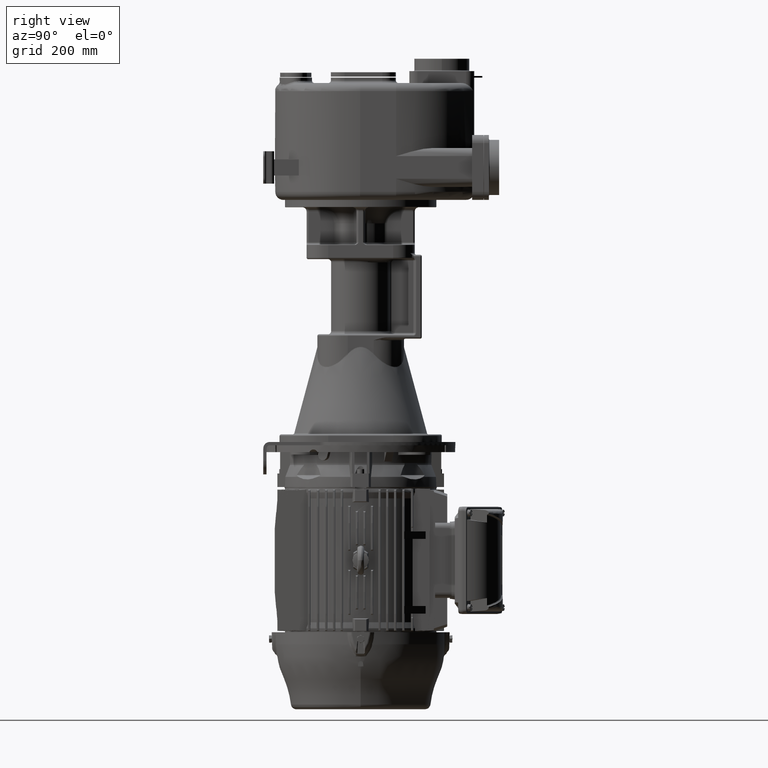
[diagram: clean part render]
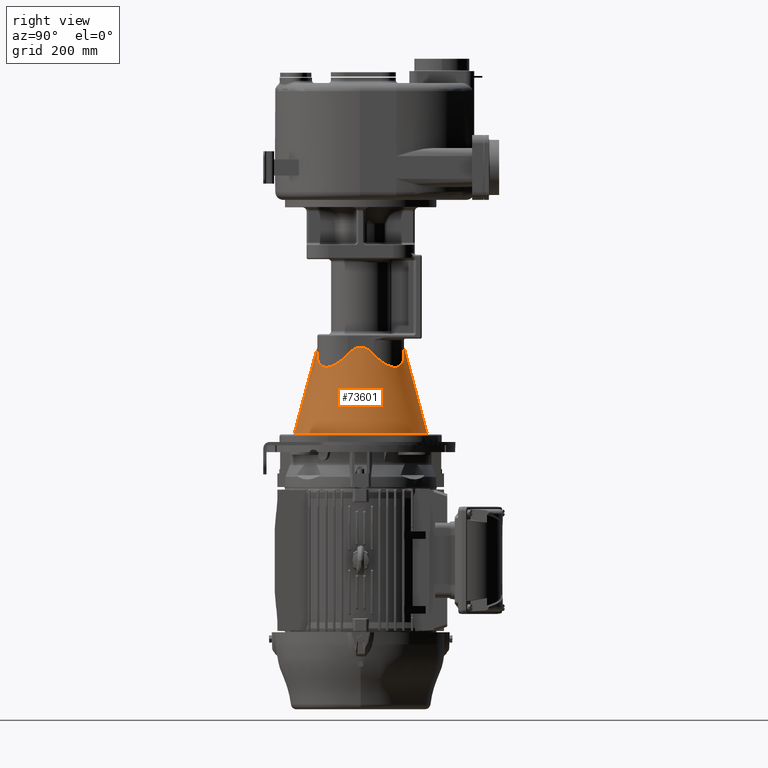
[diagram: same view with one face highlighted and labeled with its STEP entity id]
A machine part, right view. The second image highlights one B-rep face of the part: STEP entity #73601.
In plain terms, the highlighted conical surface has half-angle 15 deg.
Its self-contained STEP definition (entity closure, byte-faithful):
#20757=CARTESIAN_POINT('',(-2.324727645955E-13,1.58E2,-4.912764571353E2));
#20758=DIRECTION('',(0.E0,0.E0,1.E0));
#20759=DIRECTION('',(2.376209689192E-1,-9.713579541703E-1,0.E0));
#20760=AXIS2_PLACEMENT_3D('',#20757,#20758,#20759);
#20798=CARTESIAN_POINT('',(-2.513692998840E-13,2.381022225205E2,
-3.323500949365E2));
#21101=DIRECTION('',(0.E0,2.588190451061E-1,9.659258262881E-1));
#21102=VECTOR('',#21101,1.645326772238E2);
#21103=CARTESIAN_POINT('',(8.969810810603E-14,3.531358707165E1,
-4.912764571353E2));
#21104=LINE('',#21103,#21102);
#21105=CARTESIAN_POINT('',(2.319506396796E1,7.778373711082E1,
-3.450399315817E2));
#21106=CARTESIAN_POINT('',(2.288359843524E1,7.778661370874E1,
-3.447067289652E2));
#21107=CARTESIAN_POINT('',(2.226863818762E1,7.779220502480E1,
-3.440611301452E2));
#21108=CARTESIAN_POINT('',(2.137324140061E1,7.780009239633E1,
-3.431557259198E2));
#21109=CARTESIAN_POINT('',(2.050004827564E1,7.780753607654E1,
-3.423058945816E2));
#21110=CARTESIAN_POINT('',(1.964856931574E1,7.781455187850E1,
-3.415090249328E2));
#21111=CARTESIAN_POINT('',(1.881811140832E1,7.782115765770E1,
-3.407623363367E2));
#21112=CARTESIAN_POINT('',(1.800717068039E1,7.782737707550E1,
-3.400625046679E2));
#21113=CARTESIAN_POINT('',(1.721497222699E1,7.783322727207E1,
-3.394070239507E2));
#21114=CARTESIAN_POINT('',(1.644044440834E1,7.783872706077E1,
-3.387932733923E2));
#21115=CARTESIAN_POINT('',(1.568268036623E1,7.784389316103E1,
-3.382189200329E2));
#21116=CARTESIAN_POINT('',(1.494077587743E1,7.784874167591E1,
-3.376817647559E2));
#21117=CARTESIAN_POINT('',(1.421386435069E1,7.785328777749E1,
-3.371797665888E2));
#21118=CARTESIAN_POINT('',(1.350111279409E1,7.785754575579E1,
-3.367110299790E2));
#21119=CARTESIAN_POINT('',(1.280171576462E1,7.786152905448E1,
-3.362737936328E2));
#21120=CARTESIAN_POINT('',(1.211489612810E1,7.786525027638E1,
-3.358664241492E2));
#21121=CARTESIAN_POINT('',(1.143990248717E1,7.786872119480E1,
-3.354874079932E2));
#21122=CARTESIAN_POINT('',(1.077600792650E1,7.787195280823E1,
-3.351353446267E2));
#21123=CARTESIAN_POINT('',(1.012250753637E1,7.787495539918E1,
-3.348089394529E2));
#21124=CARTESIAN_POINT('',(9.478717047024E0,7.787773853977E1,
-3.345069980714E2));
#21125=CARTESIAN_POINT('',(8.843971320546E0,7.788031110969E1,
-3.342284208210E2));
#21126=CARTESIAN_POINT('',(8.217622980467E0,7.788268131483E1,
-3.339721977943E2));
#21127=CARTESIAN_POINT('',(7.599041007347E0,7.788485669848E1,
-3.337374042576E2));
#21128=CARTESIAN_POINT('',(6.987610053470E0,7.788684419868E1,
-3.335231965037E2));
#21129=CARTESIAN_POINT('',(6.382728527642E0,7.788865017662E1,
-3.333288077016E2));
#21130=CARTESIAN_POINT('',(5.783807710791E0,7.789028041059E1,
-3.331535446081E2));
#21131=CARTESIAN_POINT('',(5.190269569589E0,7.789174011402E1,
-3.329967841122E2));
#21132=CARTESIAN_POINT('',(4.601547002469E0,7.789303394111E1,
-3.328579709856E2));
#21133=CARTESIAN_POINT('',(4.017084441946E0,7.789416600345E1,
-3.327366151512E2));
#21134=CARTESIAN_POINT('',(3.436319602495E0,7.789513989709E1,
-3.326322874809E2));
#21135=CARTESIAN_POINT('',(2.858749675760E0,7.789595869338E1,
-3.325446265706E2));
#21136=CARTESIAN_POINT('',(2.283741555901E0,7.789662515704E1,
-3.324733127190E2));
#21137=CARTESIAN_POINT('',(1.710935328613E0,7.789714119506E1,
-3.324181163803E2));
#21138=CARTESIAN_POINT('',(1.139637366504E0,7.789750873703E1,
-3.323788219683E2));
#21139=CARTESIAN_POINT('',(5.691455433608E-1,7.789772876202E1,
-3.323553004476E2));
#21140=CARTESIAN_POINT('',(1.896066888696E-1,7.789777746899E1,
-3.323500950132E2));
#21141=CARTESIAN_POINT('',(2.155903314876E-13,7.789777747946E1,
-3.323500949365E2));
#21143=CARTESIAN_POINT('',(8.021626288916E1,1.348049360320E2,
-3.450399315817E2));
#21144=CARTESIAN_POINT('',(8.022007583366E1,1.343920820538E2,
-3.454815983195E2));
#21145=CARTESIAN_POINT('',(8.021860118358E1,1.335713561967E2,
-3.463481293245E2));
#21146=CARTESIAN_POINT('',(8.019013601445E1,1.323569917910E2,
-3.475973797957E2));
#21147=CARTESIAN_POINT('',(8.013644375145E1,1.311590206354E2,
-3.487981059423E2));
#21148=CARTESIAN_POINT('',(8.005852826009E1,1.299779153036E2,
-3.499514131168E2));
#21149=CARTESIAN_POINT('',(7.995738203444E1,1.288139593925E2,
-3.510585546237E2));
#21150=CARTESIAN_POINT('',(7.983395245576E1,1.276672081526E2,
-3.521209356111E2));
#21151=CARTESIAN_POINT('',(7.968916954858E1,1.265378098182E2,
-3.531398092186E2));
#21152=CARTESIAN_POINT('',(7.952392668494E1,1.254258013408E2,
-3.541164715815E2));
#21153=CARTESIAN_POINT('',(7.933908760887E1,1.243312028670E2,
-3.550521727107E2));
#21154=CARTESIAN_POINT('',(7.913548336963E1,1.232539926920E2,
-3.559481417145E2));
#21155=CARTESIAN_POINT('',(7.891391194714E1,1.221941154165E2,
-3.568055798083E2));
#21156=CARTESIAN_POINT('',(7.867513804119E1,1.211514849533E2,
-3.576256588856E2));
#21157=CARTESIAN_POINT('',(7.841989245632E1,1.201259858542E2,
-3.584095212799E2));
#21158=CARTESIAN_POINT('',(7.814887208069E1,1.191174765600E2,
-3.591582781104E2));
#21159=CARTESIAN_POINT('',(7.786273983987E1,1.181257918931E2,
-3.598730081957E2));
#21160=CARTESIAN_POINT('',(7.756212477342E1,1.171507451512E2,
-3.605547576539E2));
#21161=CARTESIAN_POINT('',(7.724762220146E1,1.161921302838E2,
-3.612045393188E2));
#21162=CARTESIAN_POINT('',(7.691979397758E1,1.152497240137E2,
-3.618233321848E2));
#21163=CARTESIAN_POINT('',(7.657916883215E1,1.143232878749E2,
-3.624120809636E2));
#21164=CARTESIAN_POINT('',(7.622624278927E1,1.134125701563E2,
-3.629716957382E2));
#21165=CARTESIAN_POINT('',(7.586147970929E1,1.125173079079E2,
-3.635030516029E2));
#21166=CARTESIAN_POINT('',(7.548531192713E1,1.116372288387E2,
-3.640069884960E2));
#21167=CARTESIAN_POINT('',(7.509814073538E1,1.107720526622E2,
-3.644843113467E2));
#21168=CARTESIAN_POINT('',(7.470033703046E1,1.099214927347E2,
-3.649357899876E2));
#21169=CARTESIAN_POINT('',(7.429224196353E1,1.090852575256E2,
-3.653621591879E2));
#21170=CARTESIAN_POINT('',(7.387416763672E1,1.082630520444E2,
-3.657641187192E2));
#21171=CARTESIAN_POINT('',(7.344639779184E1,1.074545791527E2,
-3.661423334560E2));
#21172=CARTESIAN_POINT('',(7.300918875674E1,1.066595411478E2,
-3.664974335082E2));
#21173=CARTESIAN_POINT('',(7.256277002854E1,1.058776406176E2,
-3.668300145918E2));
#21174=CARTESIAN_POINT('',(7.210734499484E1,1.051085815588E2,
-3.671406381824E2));
#21175=CARTESIAN_POINT('',(7.164309166646E1,1.043520704148E2,
-3.674298317485E2));
#21176=CARTESIAN_POINT('',(7.117016343012E1,1.036078170866E2,
-3.676980889941E2));
#21177=CARTESIAN_POINT('',(7.068868977129E1,1.028755358547E2,
-3.679458701021E2));
#21178=CARTESIAN_POINT('',(7.019877694194E1,1.021549461660E2,
-3.681736020528E2));
#21179=CARTESIAN_POINT('',(6.970050908822E1,1.014457739536E2,
-3.683816789439E2));
#21180=CARTESIAN_POINT('',(6.919394846979E1,1.007477517973E2,
-3.685704622509E2));
#21181=CARTESIAN_POINT('',(6.867913635031E1,1.000606199527E2,
-3.687402810254E2));
#21182=CARTESIAN_POINT('',(6.815609356815E1,9.938412693078E1,
-3.688914321379E2));
#21183=CARTESIAN_POINT('',(6.762482117482E1,9.871803015420E1,
-3.690241805170E2));
#21184=CARTESIAN_POINT('',(6.708530126628E1,9.806209685983E1,
-3.691387592692E2));
#21185=CARTESIAN_POINT('',(6.653749756530E1,9.741610455726E1,
-3.692353701226E2));
#21186=CARTESIAN_POINT('',(6.598135605582E1,9.677984166622E1,
-3.693141835617E2));
#21187=CARTESIAN_POINT('',(6.541680547208E1,9.615310803480E1,
-3.693753388366E2));
#21188=CARTESIAN_POINT('',(6.484375783916E1,9.553571545899E1,
-3.694189441105E2));
#21189=CARTESIAN_POINT('',(6.426210909684E1,9.492748831757E1,
-3.694450765255E2));
#21190=CARTESIAN_POINT('',(6.367173979467E1,9.432826426090E1,
-3.694537822714E2));
#21191=CARTESIAN_POINT('',(6.307251563731E1,9.373789473972E1,
-3.694450766414E2));
#21192=CARTESIAN_POINT('',(6.246428820819E1,9.315624561197E1,
-3.694189443220E2));
#21193=CARTESIAN_POINT('',(6.184689508692E1,9.258319737605E1,
-3.693753391059E2));
#21194=CARTESIAN_POINT('',(6.122016082625E1,9.201864614922E1,
-3.693141838462E2));
#21195=CARTESIAN_POINT('',(6.058389736599E1,9.146250408619E1,
-3.692353703885E2));
#21196=CARTESIAN_POINT('',(5.993790450299E1,9.091469986739E1,
-3.691387594946E2));
#21197=CARTESIAN_POINT('',(5.928197071537E1,9.037517952529E1,
-3.690241806838E2));
#21198=CARTESIAN_POINT('',(5.861587339908E1,8.984390668603E1,
-3.688914322126E2));
#21199=CARTESIAN_POINT('',(5.793937977484E1,8.932086343713E1,
-3.687402809673E2));
#21200=CARTESIAN_POINT('',(5.725224738090E1,8.880605092037E1,
-3.685704620417E2));
#21201=CARTESIAN_POINT('',(5.655422474002E1,8.829948997602E1,
-3.683816785771E2));
#21202=CARTESIAN_POINT('',(5.584505204862E1,8.780122182034E1,
-3.681736015130E2));
#21203=CARTESIAN_POINT('',(5.512446189012E1,8.731130871725E1,
-3.679458693676E2));
#21204=CARTESIAN_POINT('',(5.439218011245E1,8.682983475562E1,
-3.676980880189E2));
#21205=CARTESIAN_POINT('',(5.364792629014E1,8.635690627270E1,
-3.674298305278E2));
#21206=CARTESIAN_POINT('',(5.289141469286E1,8.589265274272E1,
-3.671406367110E2));
#21207=CARTESIAN_POINT('',(5.212235518027E1,8.543722752476E1,
-3.668300128528E2));
#21208=CARTESIAN_POINT('',(5.134045418111E1,8.499080862250E1,
-3.664974314750E2));
#21209=CARTESIAN_POINT('',(5.054541571263E1,8.455359943554E1,
-3.661423311106E2));
#21210=CARTESIAN_POINT('',(4.973694240353E1,8.412582948090E1,
-3.657641160656E2));
#21211=CARTESIAN_POINT('',(4.891473657127E1,8.370775509363E1,
-3.653621562419E2));
#21212=CARTESIAN_POINT('',(4.807850103111E1,8.329965998896E1,
-3.649357867455E2));
#21213=CARTESIAN_POINT('',(4.722794080122E1,8.290185627228E1,
-3.644843078101E2));
#21214=CARTESIAN_POINT('',(4.636276437545E1,8.251468510357E1,
-3.640069846821E2));
#21215=CARTESIAN_POINT('',(4.548268511107E1,8.213851737616E1,
-3.635030475332E2));
#21216=CARTESIAN_POINT('',(4.458742271126E1,8.177375437551E1,
-3.629716914306E2));
#21217=CARTESIAN_POINT('',(4.367670488139E1,8.142082843279E1,
-3.624120764364E2));
#21218=CARTESIAN_POINT('',(4.275026869424E1,8.108020341402E1,
-3.618233274734E2));
#21219=CARTESIAN_POINT('',(4.180786240939E1,8.075237532963E1,
-3.612045344431E2));
#21220=CARTESIAN_POINT('',(4.084924755734E1,8.043787290743E1,
-3.605547526327E2));
#21221=CARTESIAN_POINT('',(3.987420090456E1,8.013725801228E1,
-3.598730030810E2));
#21222=CARTESIAN_POINT('',(3.888251641240E1,7.985112596311E1,
-3.591582729671E2));
#21223=CARTESIAN_POINT('',(3.787400731826E1,7.958010577832E1,
-3.584095161344E2));
#21224=CARTESIAN_POINT('',(3.684850842583E1,7.932486037902E1,
-3.576256537488E2));
#21225=CARTESIAN_POINT('',(3.580587830309E1,7.908608668047E1,
-3.568055747946E2));
#21226=CARTESIAN_POINT('',(3.474600148282E1,7.886451547431E1,
-3.559481369324E2));
#21227=CARTESIAN_POINT('',(3.366879173902E1,7.866091142924E1,
-3.550521681580E2));
#21228=CARTESIAN_POINT('',(3.257419371900E1,7.847607253471E1,
-3.541164672969E2));
#21229=CARTESIAN_POINT('',(3.146218589588E1,7.831082986321E1,
-3.531398053975E2));
#21230=CARTESIAN_POINT('',(3.033278825322E1,7.816604712562E1,
-3.521209323196E2));
#21231=CARTESIAN_POINT('',(2.918603778746E1,7.804261769641E1,
-3.510585519696E2));
#21232=CARTESIAN_POINT('',(2.802208235505E1,7.794147156256E1,
-3.499514108588E2));
#21233=CARTESIAN_POINT('',(2.684097725983E1,7.786355613549E1,
-3.487981038554E2));
#21234=CARTESIAN_POINT('',(2.564300680926E1,7.780986394241E1,
-3.475973783691E2));
#21235=CARTESIAN_POINT('',(2.442864300406E1,7.778139881212E1,
-3.463481284834E2));
#21236=CARTESIAN_POINT('',(2.360791766869E1,7.777992416688E1,
-3.454815980262E2));
#21237=CARTESIAN_POINT('',(2.319506396796E1,7.778373711082E1,
-3.450399315817E2));
#21239=CARTESIAN_POINT('',(8.021626288916E1,1.811950639679E2,
-3.450399315817E2));
#21240=CARTESIAN_POINT('',(8.021333414240E1,1.808779517766E2,
-3.447006882385E2));
#21241=CARTESIAN_POINT('',(8.020764450838E1,1.802519947013E2,
-3.440437755973E2));
#21242=CARTESIAN_POINT('',(8.019962846198E1,1.793411783943E2,
-3.431237381848E2));
#21243=CARTESIAN_POINT('',(8.019207146435E1,1.784533469403E2,
-3.422611802570E2));
#21244=CARTESIAN_POINT('',(8.018495987113E1,1.775883583960E2,
-3.414536913617E2));
#21245=CARTESIAN_POINT('',(8.017827145508E1,1.767450909241E2,
-3.406979586973E2));
#21246=CARTESIAN_POINT('',(8.017198303159E1,1.759221657894E2,
-3.399906701178E2));
#21247=CARTESIAN_POINT('',(8.016607580253E1,1.751186853536E2,
-3.393291074846E2));
#21248=CARTESIAN_POINT('',(8.016052992694E1,1.743335295908E2,
-3.387105216463E2));
#21249=CARTESIAN_POINT('',(8.015532766168E1,1.735657437250E2,
-3.381324589751E2));
#21250=CARTESIAN_POINT('',(8.015045203977E1,1.728143682111E2,
-3.375926052502E2));
#21251=CARTESIAN_POINT('',(8.014588711932E1,1.720784906755E2,
-3.370888207217E2));
#21252=CARTESIAN_POINT('',(8.014161787749E1,1.713572314723E2,
-3.366191189022E2));
#21253=CARTESIAN_POINT('',(8.013763019648E1,1.706497419955E2,
-3.361816579458E2));
#21254=CARTESIAN_POINT('',(8.013391085805E1,1.699552036087E2,
-3.357747323357E2));
#21255=CARTESIAN_POINT('',(8.013044751593E1,1.692728247173E2,
-3.353967641229E2));
#21256=CARTESIAN_POINT('',(8.012722868766E1,1.686018402283E2,
-3.350462961166E2));
#21257=CARTESIAN_POINT('',(8.012424366697E1,1.679415089626E2,
-3.347219841319E2));
#21258=CARTESIAN_POINT('',(8.012148249469E1,1.672911115978E2,
-3.344225903709E2));
#21259=CARTESIAN_POINT('',(8.011893594853E1,1.666499491646E2,
-3.341469776350E2));
#21260=CARTESIAN_POINT('',(8.011659552540E1,1.660173415225E2,
-3.338941039393E2));
#21261=CARTESIAN_POINT('',(8.011445342717E1,1.653926258478E2,
-3.336630175811E2));
#21262=CARTESIAN_POINT('',(8.011250252864E1,1.647751556090E2,
-3.334528527145E2));
#21263=CARTESIAN_POINT('',(8.011073629741E1,1.641642994020E2,
-3.332628250190E2));
#21264=CARTESIAN_POINT('',(8.010914881924E1,1.635594388295E2,
-3.330922278655E2));
#21265=CARTESIAN_POINT('',(8.010773478302E1,1.629599674262E2,
-3.329404290709E2));
#21266=CARTESIAN_POINT('',(8.010648947203E1,1.623652894244E2,
-3.328068679428E2));
#21267=CARTESIAN_POINT('',(8.010540874931E1,1.617748185946E2,
-3.326910526450E2));
#21268=CARTESIAN_POINT('',(8.010448905520E1,1.611879770962E2,
-3.325925579219E2));
#21269=CARTESIAN_POINT('',(8.010372729881E1,1.606041946906E2,
-3.325110227639E2));
#21270=CARTESIAN_POINT('',(8.010312091235E1,1.600229070438E2,
-3.324461488333E2));
#21271=CARTESIAN_POINT('',(8.010266786131E1,1.594435546589E2,
-3.323976991553E2));
#21272=CARTESIAN_POINT('',(8.010236663806E1,1.588655818261E2,
-3.323654970161E2));
#21273=CARTESIAN_POINT('',(8.010221625494E1,1.582884355718E2,
-3.323494251277E2));
#21274=CARTESIAN_POINT('',(8.010221625482E1,1.577115646258E2,
-3.323494251246E2));
#21275=CARTESIAN_POINT('',(8.010236663787E1,1.571344183717E2,
-3.323654970074E2));
#21276=CARTESIAN_POINT('',(8.010266786112E1,1.565564455393E2,
-3.323976991413E2));
#21277=CARTESIAN_POINT('',(8.010312091220E1,1.559770931551E2,
-3.324461488140E2));
#21278=CARTESIAN_POINT('',(8.010372729867E1,1.553958055091E2,
-3.325110227392E2));
#21279=CARTESIAN_POINT('',(8.010448905501E1,1.548120231045E2,
-3.325925578914E2));
#21280=CARTESIAN_POINT('',(8.010540874894E1,1.542251816072E2,
-3.326910526082E2));
#21281=CARTESIAN_POINT('',(8.010648947153E1,1.536347107785E2,
-3.328068678997E2));
#21282=CARTESIAN_POINT('',(8.010773478250E1,1.530400327783E2,
-3.329404290218E2));
#21283=CARTESIAN_POINT('',(8.010914881873E1,1.524405613769E2,
-3.330922278103E2));
#21284=CARTESIAN_POINT('',(8.011073629689E1,1.518357008067E2,
-3.332628249573E2));
#21285=CARTESIAN_POINT('',(8.011250252807E1,1.512248446019E2,
-3.334528526461E2));
#21286=CARTESIAN_POINT('',(8.011445342648E1,1.506073743654E2,
-3.336630175055E2));
#21287=CARTESIAN_POINT('',(8.011659552457E1,1.499826586930E2,
-3.338941038561E2));
#21288=CARTESIAN_POINT('',(8.011893594766E1,1.493500510537E2,
-3.341469775443E2));
#21289=CARTESIAN_POINT('',(8.012148249378E1,1.487088886238E2,
-3.344225902724E2));
#21290=CARTESIAN_POINT('',(8.012424366601E1,1.480584912625E2,
-3.347219840249E2));
#21291=CARTESIAN_POINT('',(8.012722868660E1,1.473981600004E2,
-3.350462960007E2));
#21292=CARTESIAN_POINT('',(8.013044751475E1,1.467271755153E2,
-3.353967639977E2));
#21293=CARTESIAN_POINT('',(8.013391085682E1,1.460447966275E2,
-3.357747322011E2));
#21294=CARTESIAN_POINT('',(8.013763019522E1,1.453502582451E2,
-3.361816578011E2));
#21295=CARTESIAN_POINT('',(8.014161787613E1,1.446427687731E2,
-3.366191187466E2));
#21296=CARTESIAN_POINT('',(8.014588711781E1,1.439215095754E2,
-3.370888205541E2));
#21297=CARTESIAN_POINT('',(8.015045203806E1,1.431856320453E2,
-3.375926050700E2));
#21298=CARTESIAN_POINT('',(8.015532765978E1,1.424342565351E2,
-3.381324587832E2));
#21299=CARTESIAN_POINT('',(8.016052992509E1,1.416664706718E2,
-3.387105214439E2));
#21300=CARTESIAN_POINT('',(8.016607580076E1,1.408813149176E2,
-3.393291072671E2));
#21301=CARTESIAN_POINT('',(8.017198302953E1,1.400778345062E2,
-3.399906698695E2));
#21302=CARTESIAN_POINT('',(8.017827145315E1,1.392549093551E2,
-3.406979584539E2));
#21303=CARTESIAN_POINT('',(8.018495986813E1,1.384116419514E2,
-3.414536910420E2));
#21304=CARTESIAN_POINT('',(8.019207146239E1,1.375466532612E2,
-3.422611800646E2));
#21305=CARTESIAN_POINT('',(8.019962845759E1,1.366588220491E2,
-3.431237377461E2));
#21306=CARTESIAN_POINT('',(8.020764450428E1,1.357480057202E2,
-3.440437751591E2));
#21307=CARTESIAN_POINT('',(8.021333414088E1,1.351220483974E2,
-3.447006880530E2));
#21308=CARTESIAN_POINT('',(8.021626288916E1,1.348049360320E2,
-3.450399315817E2));
#21310=CARTESIAN_POINT('',(2.319506396795E1,2.382162628892E2,
-3.450399315816E2));
#21311=CARTESIAN_POINT('',(2.360791789286E1,2.382200758331E2,
-3.454815982624E2));
#21312=CARTESIAN_POINT('',(2.442864363548E1,2.382186011847E2,
-3.463481291486E2));
#21313=CARTESIAN_POINT('',(2.564300785537E1,2.381901360250E2,
-3.475973794355E2));
#21314=CARTESIAN_POINT('',(2.684097878559E1,2.381364437833E2,
-3.487981053694E2));
#21315=CARTESIAN_POINT('',(2.802208420891E1,2.380585282975E2,
-3.499514126472E2));
#21316=CARTESIAN_POINT('',(2.918604006451E1,2.379573820870E2,
-3.510585541125E2));
#21317=CARTESIAN_POINT('',(3.033279143183E1,2.378339525051E2,
-3.521209352316E2));
#21318=CARTESIAN_POINT('',(3.146218969533E1,2.376891696152E2,
-3.531398087849E2));
#21319=CARTESIAN_POINT('',(3.257419812847E1,2.375239267699E2,
-3.541164711235E2));
#21320=CARTESIAN_POINT('',(3.366879668601E1,2.373390876893E2,
-3.550521723341E2));
#21321=CARTESIAN_POINT('',(3.474600689760E1,2.371354834512E2,
-3.559481413780E2));
#21322=CARTESIAN_POINT('',(3.580588412344E1,2.369139120474E2,
-3.568055794406E2));
#21323=CARTESIAN_POINT('',(3.684851458672E1,2.366751381512E2,
-3.576256585284E2));
#21324=CARTESIAN_POINT('',(3.787401375671E1,2.364198925574E2,
-3.584095209872E2));
#21325=CARTESIAN_POINT('',(3.888252306690E1,2.361488721846E2,
-3.591582778375E2));
#21326=CARTESIAN_POINT('',(3.987420771516E1,2.358627399568E2,
-3.598730079178E2));
#21327=CARTESIAN_POINT('',(4.084925446591E1,2.355621248954E2,
-3.605547573904E2));
#21328=CARTESIAN_POINT('',(4.180786935966E1,2.352476223220E2,
-3.612045390810E2));
#21329=CARTESIAN_POINT('',(4.275027563222E1,2.349197941041E2,
-3.618233319558E2));
#21330=CARTESIAN_POINT('',(4.367671175555E1,2.345791689716E2,
-3.624120807325E2));
#21331=CARTESIAN_POINT('',(4.458742947287E1,2.342262429367E2,
-3.629716955143E2));
#21332=CARTESIAN_POINT('',(4.548269171294E1,2.338614798675E2,
-3.635030513818E2));
#21333=CARTESIAN_POINT('',(4.636277077308E1,2.334853120968E2,
-3.640069882774E2));
#21334=CARTESIAN_POINT('',(4.722794695298E1,2.330981409115E2,
-3.644843111384E2));
#21335=CARTESIAN_POINT('',(4.807850689802E1,2.327003372061E2,
-3.649357897968E2));
#21336=CARTESIAN_POINT('',(4.891474211708E1,2.322922421416E2,
-3.653621590097E2));
#21337=CARTESIAN_POINT('',(4.973694759513E1,2.318741678239E2,
-3.657641185472E2));
#21338=CARTESIAN_POINT('',(5.054542052010E1,2.314463979685E2,
-3.661423333062E2));
#21339=CARTESIAN_POINT('',(5.134045857615E1,2.310091889118E2,
-3.664974333884E2));
#21340=CARTESIAN_POINT('',(5.212235913707E1,2.305627701714E2,
-3.668300144904E2));
#21341=CARTESIAN_POINT('',(5.289141818862E1,2.301073451467E2,
-3.671406380822E2));
#21342=CARTESIAN_POINT('',(5.364792930532E1,2.296430918411E2,
-3.674298316446E2));
#21343=CARTESIAN_POINT('',(5.439218263022E1,2.291701636135E2,
-3.676980888957E2));
#21344=CARTESIAN_POINT('',(5.512446389604E1,2.286886899378E2,
-3.679458700203E2));
#21345=CARTESIAN_POINT('',(5.584505353052E1,2.281987771514E2,
-3.681736019603E2));
#21346=CARTESIAN_POINT('',(5.655422568821E1,2.277005093427E2,
-3.683816788400E2));
#21347=CARTESIAN_POINT('',(5.725224778912E1,2.271939487744E2,
-3.685704621431E2));
#21348=CARTESIAN_POINT('',(5.793937963930E1,2.266791366618E2,
-3.687402809315E2));
#21349=CARTESIAN_POINT('',(5.861587271793E1,2.261560938446E2,
-3.688914320647E2));
#21350=CARTESIAN_POINT('',(5.928196948864E1,2.256248214638E2,
-3.690241804502E2));
#21351=CARTESIAN_POINT('',(5.993790273278E1,2.250853016061E2,
-3.691387592023E2));
#21352=CARTESIAN_POINT('',(6.058389505593E1,2.245374978976E2,
-3.692353700671E2));
#21353=CARTESIAN_POINT('',(6.122015799320E1,2.239813563595E2,
-3.693141835270E2));
#21354=CARTESIAN_POINT('',(6.184689172059E1,2.234168056968E2,
-3.693753388174E2));
#21355=CARTESIAN_POINT('',(6.246428433195E1,2.228437580353E2,
-3.694189440973E2));
#21356=CARTESIAN_POINT('',(6.307251140460E1,2.222621093663E2,
-3.694450765172E2));
#21357=CARTESIAN_POINT('',(6.367173548981E1,2.216717400440E2,
-3.694537822715E2));
#21358=CARTESIAN_POINT('',(6.426210500073E1,2.210725159051E2,
-3.694450766495E2));
#21359=CARTESIAN_POINT('',(6.484375420611E1,2.204642884021E2,
-3.694189443345E2));
#21360=CARTESIAN_POINT('',(6.541680241329E1,2.198468953162E2,
-3.693753391238E2));
#21361=CARTESIAN_POINT('',(6.598135356121E1,2.192201611509E2,
-3.693141838792E2));
#21362=CARTESIAN_POINT('',(6.653749559722E1,2.185838977346E2,
-3.692353704415E2));
#21363=CARTESIAN_POINT('',(6.708529980849E1,2.179379048916E2,
-3.691387595585E2));
#21364=CARTESIAN_POINT('',(6.762482019931E1,2.172819710557E2,
-3.690241807475E2));
#21365=CARTESIAN_POINT('',(6.815609305004E1,2.166158737345E2,
-3.688914322825E2));
#21366=CARTESIAN_POINT('',(6.867913626366E1,2.159393801667E2,
-3.687402810575E2));
#21367=CARTESIAN_POINT('',(6.919394878730E1,2.152522477779E2,
-3.685704621451E2));
#21368=CARTESIAN_POINT('',(6.970050978090E1,2.145542250822E2,
-3.683816786764E2));
#21369=CARTESIAN_POINT('',(7.019877797996E1,2.138450523380E2,
-3.681736016011E2));
#21370=CARTESIAN_POINT('',(7.068869112483E1,2.131244621265E2,
-3.679458694452E2));
#21371=CARTESIAN_POINT('',(7.117016506949E1,2.123921803825E2,
-3.676980881128E2));
#21372=CARTESIAN_POINT('',(7.164309356115E1,2.116479265564E2,
-3.674298306266E2));
#21373=CARTESIAN_POINT('',(7.210734711363E1,2.108914149318E2,
-3.671406368058E2));
#21374=CARTESIAN_POINT('',(7.256277234011E1,2.101223554123E2,
-3.668300129486E2));
#21375=CARTESIAN_POINT('',(7.300919122989E1,2.093404544438E2,
-3.664974315890E2));
#21376=CARTESIAN_POINT('',(7.344640039541E1,2.085454160257E2,
-3.661423312539E2));
#21377=CARTESIAN_POINT('',(7.387417033945E1,2.077369427495E2,
-3.657641162308E2));
#21378=CARTESIAN_POINT('',(7.429224473535E1,2.069147369144E2,
-3.653621564131E2));
#21379=CARTESIAN_POINT('',(7.470033984185E1,2.060785013849E2,
-3.649357869293E2));
#21380=CARTESIAN_POINT('',(7.509814355757E1,2.052279411730E2,
-3.644843080113E2));
#21381=CARTESIAN_POINT('',(7.548531473230E1,2.043627647509E2,
-3.640069848934E2));
#21382=CARTESIAN_POINT('',(7.586148247075E1,2.034826854780E2,
-3.635030477472E2));
#21383=CARTESIAN_POINT('',(7.622624548172E1,2.025874230705E2,
-3.629716916475E2));
#21384=CARTESIAN_POINT('',(7.657917143201E1,2.016767052397E2,
-3.624120766604E2));
#21385=CARTESIAN_POINT('',(7.691979646331E1,2.007502690375E2,
-3.618233276954E2));
#21386=CARTESIAN_POINT('',(7.724762455327E1,1.998078627556E2,
-3.612045346741E2));
#21387=CARTESIAN_POINT('',(7.756212697378E1,1.988492479303E2,
-3.605547528894E2));
#21388=CARTESIAN_POINT('',(7.786274187369E1,1.978742012867E2,
-3.598730033520E2));
#21389=CARTESIAN_POINT('',(7.814887393549E1,1.968825167765E2,
-3.591582732333E2));
#21390=CARTESIAN_POINT('',(7.841989412263E1,1.958740076995E2,
-3.584095164212E2));
#21391=CARTESIAN_POINT('',(7.867513951262E1,1.948485088791E2,
-3.576256541007E2));
#21392=CARTESIAN_POINT('',(7.891391322062E1,1.938058787567E2,
-3.568055751573E2));
#21393=CARTESIAN_POINT('',(7.913548444515E1,1.927460018878E2,
-3.559481372645E2));
#21394=CARTESIAN_POINT('',(7.933908849095E1,1.916687921824E2,
-3.550521685315E2));
#21395=CARTESIAN_POINT('',(7.952392738076E1,1.905741942472E2,
-3.541164677527E2));
#21396=CARTESIAN_POINT('',(7.968917007050E1,1.894621863801E2,
-3.531398058292E2));
#21397=CARTESIAN_POINT('',(7.983395282512E1,1.883327886678E2,
-3.521209326982E2));
#21398=CARTESIAN_POINT('',(7.995738225093E1,1.871860383318E2,
-3.510585524820E2));
#21399=CARTESIAN_POINT('',(8.005852839983E1,1.860220828447E2,
-3.499514113305E2));
#21400=CARTESIAN_POINT('',(8.013644383246E1,1.848409778422E2,
-3.487981044315E2));
#21401=CARTESIAN_POINT('',(8.019013604685E1,1.836430071675E2,
-3.475973787339E2));
#21402=CARTESIAN_POINT('',(8.021860118674E1,1.824286431771E2,
-3.463481286647E2));
#21403=CARTESIAN_POINT('',(8.022007583364E1,1.816079177242E2,
-3.454815980856E2));
#21404=CARTESIAN_POINT('',(8.021626288916E1,1.811950639679E2,
-3.450399315817E2));
#21406=CARTESIAN_POINT('',(-2.513692998840E-13,2.381022225205E2,
-3.323500949365E2));
#21407=CARTESIAN_POINT('',(1.896745422571E-1,2.381022225331E2,
-3.323500950281E2));
#21408=CARTESIAN_POINT('',(5.693488262774E-1,2.381022712695E2,
-3.323553041526E2));
#21409=CARTESIAN_POINT('',(1.140043849339E0,2.381024914542E2,
-3.323788424753E2));
#21410=CARTESIAN_POINT('',(1.711542665272E0,2.381028592559E2,
-3.324181647001E2));
#21411=CARTESIAN_POINT('',(2.284547715051E0,2.381033756572E2,
-3.324733997592E2));
#21412=CARTESIAN_POINT('',(2.859751028891E0,2.381040425819E2,
-3.325447629125E2));
#21413=CARTESIAN_POINT('',(3.437512051464E0,2.381048619338E2,
-3.326324833850E2));
#21414=CARTESIAN_POINT('',(4.018462860014E0,2.381058364720E2,
-3.327368804291E2));
#21415=CARTESIAN_POINT('',(4.603105374683E0,2.381069692647E2,
-3.328583149264E2));
#21416=CARTESIAN_POINT('',(5.192000970449E0,2.381082639030E2,
-3.329972153910E2));
#21417=CARTESIAN_POINT('',(5.785704225278E0,2.381097244899E2,
-3.331540711572E2));
#21418=CARTESIAN_POINT('',(6.384781267905E0,2.381113556708E2,
-3.333294366120E2));
#21419=CARTESIAN_POINT('',(6.989809093194E0,2.381131626490E2,
-3.335239338950E2));
#21420=CARTESIAN_POINT('',(7.601375353349E0,2.381151511918E2,
-3.337382551483E2));
#21421=CARTESIAN_POINT('',(8.220080527447E0,2.381173276481E2,
-3.339731659564E2));
#21422=CARTESIAN_POINT('',(8.846538777181E0,2.381196989443E2,
-3.342295086177E2));
#21423=CARTESIAN_POINT('',(9.481379892450E0,2.381222726076E2,
-3.345082062738E2));
#21424=CARTESIAN_POINT('',(1.012524996617E1,2.381250568264E2,
-3.348102670498E2));
#21425=CARTESIAN_POINT('',(1.077881278585E1,2.381280604612E2,
-3.351367886125E2));
#21426=CARTESIAN_POINT('',(1.144275120050E1,2.381312930635E2,
-3.354889631363E2));
#21427=CARTESIAN_POINT('',(1.211776862094E1,2.381347648933E2,
-3.358680827355E2));
#21428=CARTESIAN_POINT('',(1.280459038309E1,2.381384869248E2,
-3.362755451877E2));
#21429=CARTESIAN_POINT('',(1.350396618463E1,2.381424709016E2,
-3.367128609268E2));
#21430=CARTESIAN_POINT('',(1.421667139166E1,2.381467293959E2,
-3.371816599320E2));
#21431=CARTESIAN_POINT('',(1.494350957809E1,2.381512758179E2,
-3.376836997046E2));
#21432=CARTESIAN_POINT('',(1.568531172837E1,2.381561244215E2,
-3.382208715733E2));
#21433=CARTESIAN_POINT('',(1.644294238145E1,2.381612903400E2,
-3.387952118929E2));
#21434=CARTESIAN_POINT('',(1.721730339438E1,2.381667896337E2,
-3.394089145249E2));
#21435=CARTESIAN_POINT('',(1.800929944552E1,2.381726389749E2,
-3.400643068707E2));
#21436=CARTESIAN_POINT('',(1.881999944977E1,2.381788571217E2,
-3.407640032672E2));
#21437=CARTESIAN_POINT('',(1.965017538096E1,2.381854611581E2,
-3.415105024535E2));
#21438=CARTESIAN_POINT('',(2.050132968843E1,2.381924746995E2,
-3.423071223088E2));
#21439=CARTESIAN_POINT('',(2.137414882244E1,2.381999155059E2,
-3.431566314375E2));
#21440=CARTESIAN_POINT('',(2.226912468559E1,2.382077993722E2,
-3.440616373333E2));
#21441=CARTESIAN_POINT('',(2.288376610013E1,2.382133878399E2,
-3.447069083329E2));
#21442=CARTESIAN_POINT('',(2.319506396795E1,2.382162628892E2,
-3.450399315816E2));
#21444=DIRECTION('',(0.E0,-2.588190451061E-1,9.659258262881E-1));
#21445=VECTOR('',#21444,1.645326772238E2);
#21446=CARTESIAN_POINT('',(-5.902644491527E-13,2.806864129284E2,
-4.912764571353E2));
#21447=LINE('',#21446,#21445);
#21453=CARTESIAN_POINT('',(-2.324727645955E-13,1.58E2,-4.912764571353E2));
#21454=DIRECTION('',(0.E0,0.E0,1.E0));
#21455=DIRECTION('',(0.E0,-1.E0,0.E0));
#21456=AXIS2_PLACEMENT_3D('',#21453,#21454,#21455);
#44175=VERTEX_POINT('',#20798);
#44177=VERTEX_POINT('',#21442);
#44180=VERTEX_POINT('',#21239);
#44181=VERTEX_POINT('',#21308);
#44184=VERTEX_POINT('',#21105);
#44185=VERTEX_POINT('',#21141);
#44192=CARTESIAN_POINT('',(-5.902644491527E-13,2.806864129284E2,
-4.912764571353E2));
#44193=VERTEX_POINT('',#44192);
#44198=CARTESIAN_POINT('',(2.915286431326E1,3.882757693343E1,
-4.912764571353E2));
#44199=VERTEX_POINT('',#44198);
#44202=CARTESIAN_POINT('',(8.727146649655E-14,3.531358707165E1,
-4.912764571353E2));
#44203=VERTEX_POINT('',#44202);
#73579=CARTESIAN_POINT('',(-1.326144274212E-13,1.58E2,-4.118129738237E2));
#73580=DIRECTION('',(0.E0,0.E0,-1.E0));
#73581=DIRECTION('',(0.E0,-1.E0,-2.018141435163E-14));
#73582=AXIS2_PLACEMENT_3D('',#73579,#73580,#73581);
#73583=CONICAL_SURFACE('',#73582,1.013942367472E2,1.5E1);
#73584=ORIENTED_EDGE('',*,*,#73549,.F.);
#73586=ORIENTED_EDGE('',*,*,#73585,.F.);
#73587=ORIENTED_EDGE('',*,*,#73559,.T.);
#73589=ORIENTED_EDGE('',*,*,#73588,.F.);
#73591=ORIENTED_EDGE('',*,*,#73590,.F.);
#73593=ORIENTED_EDGE('',*,*,#73592,.F.);
#73595=ORIENTED_EDGE('',*,*,#73594,.F.);
#73597=ORIENTED_EDGE('',*,*,#73596,.F.);
#73598=ORIENTED_EDGE('',*,*,#73564,.F.);
#73599=EDGE_LOOP('',(#73584,#73586,#73587,#73589,#73591,#73593,#73595,#73597,
#73598));
#73600=FACE_OUTER_BOUND('',#73599,.F.);
#73601=ADVANCED_FACE('',(#73600),#73583,.T.);
#20761=CIRCLE('',#20760,1.226864129284E2);
#21142=B_SPLINE_CURVE_WITH_KNOTS('',3,(#21105,#21106,#21107,#21108,#21109,
#21110,#21111,#21112,#21113,#21114,#21115,#21116,#21117,#21118,#21119,#21120,
#21121,#21122,#21123,#21124,#21125,#21126,#21127,#21128,#21129,#21130,#21131,
#21132,#21133,#21134,#21135,#21136,#21137,#21138,#21139,#21140,#21141),
.UNSPECIFIED.,.F.,.F.,(4,1,1,1,1,1,1,1,1,1,1,1,1,1,1,1,1,1,1,1,1,1,1,1,1,1,1,1,
1,1,1,1,1,1,4),(0.E0,2.941176470588E-2,5.882352941176E-2,8.823529411765E-2,
1.176470588235E-1,1.470588235294E-1,1.764705882353E-1,2.058823529412E-1,
2.352941176471E-1,2.647058823529E-1,2.941176470588E-1,3.235294117647E-1,
3.529411764706E-1,3.823529411765E-1,4.117647058824E-1,4.411764705882E-1,
4.705882352941E-1,5.E-1,5.294117647059E-1,5.588235294118E-1,5.882352941176E-1,
6.176470588235E-1,6.470588235294E-1,6.764705882353E-1,7.058823529412E-1,
7.352941176471E-1,7.647058823529E-1,7.941176470588E-1,8.235294117647E-1,
8.529411764706E-1,8.823529411765E-1,9.117647058824E-1,9.411764705882E-1,
9.705882352941E-1,1.E0),.UNSPECIFIED.);
#21238=B_SPLINE_CURVE_WITH_KNOTS('',3,(#21143,#21144,#21145,#21146,#21147,
#21148,#21149,#21150,#21151,#21152,#21153,#21154,#21155,#21156,#21157,#21158,
#21159,#21160,#21161,#21162,#21163,#21164,#21165,#21166,#21167,#21168,#21169,
#21170,#21171,#21172,#21173,#21174,#21175,#21176,#21177,#21178,#21179,#21180,
#21181,#21182,#21183,#21184,#21185,#21186,#21187,#21188,#21189,#21190,#21191,
#21192,#21193,#21194,#21195,#21196,#21197,#21198,#21199,#21200,#21201,#21202,
#21203,#21204,#21205,#21206,#21207,#21208,#21209,#21210,#21211,#21212,#21213,
#21214,#21215,#21216,#21217,#21218,#21219,#21220,#21221,#21222,#21223,#21224,
#21225,#21226,#21227,#21228,#21229,#21230,#21231,#21232,#21233,#21234,#21235,
#21236,#21237),.UNSPECIFIED.,.F.,.F.,(4,1,1,1,1,1,1,1,1,1,1,1,1,1,1,1,1,1,1,1,1,
1,1,1,1,1,1,1,1,1,1,1,1,1,1,1,1,1,1,1,1,1,1,1,1,1,1,1,1,1,1,1,1,1,1,1,1,1,1,1,1,
1,1,1,1,1,1,1,1,1,1,1,1,1,1,1,1,1,1,1,1,1,1,1,1,1,1,1,1,1,1,1,4),(0.E0,
1.086956521739E-2,2.173913043478E-2,3.260869565217E-2,4.347826086957E-2,
5.434782608696E-2,6.521739130435E-2,7.608695652174E-2,8.695652173913E-2,
9.782608695652E-2,1.086956521739E-1,1.195652173913E-1,1.304347826087E-1,
1.413043478261E-1,1.521739130435E-1,1.630434782609E-1,1.739130434783E-1,
1.847826086957E-1,1.956521739130E-1,2.065217391304E-1,2.173913043478E-1,
2.282608695652E-1,2.391304347826E-1,2.5E-1,2.608695652174E-1,2.717391304348E-1,
2.826086956522E-1,2.934782608696E-1,3.043478260870E-1,3.152173913043E-1,
3.260869565217E-1,3.369565217391E-1,3.478260869565E-1,3.586956521739E-1,
3.695652173913E-1,3.804347826087E-1,3.913043478261E-1,4.021739130435E-1,
4.130434782609E-1,4.239130434783E-1,4.347826086957E-1,4.456521739130E-1,
4.565217391304E-1,4.673913043478E-1,4.782608695652E-1,4.891304347826E-1,5.E-1,
5.108695652174E-1,5.217391304348E-1,5.326086956522E-1,5.434782608696E-1,
5.543478260870E-1,5.652173913043E-1,5.760869565217E-1,5.869565217391E-1,
5.978260869565E-1,6.086956521739E-1,6.195652173913E-1,6.304347826087E-1,
6.413043478261E-1,6.521739130435E-1,6.630434782609E-1,6.739130434783E-1,
6.847826086957E-1,6.956521739130E-1,7.065217391304E-1,7.173913043478E-1,
7.282608695652E-1,7.391304347826E-1,7.5E-1,7.608695652174E-1,7.717391304348E-1,
7.826086956522E-1,7.934782608696E-1,8.043478260870E-1,8.152173913043E-1,
8.260869565217E-1,8.369565217391E-1,8.478260869565E-1,8.586956521739E-1,
8.695652173913E-1,8.804347826087E-1,8.913043478261E-1,9.021739130435E-1,
9.130434782609E-1,9.239130434783E-1,9.347826086957E-1,9.456521739130E-1,
9.565217391304E-1,9.673913043478E-1,9.782608695652E-1,9.891304347826E-1,1.E0),
.UNSPECIFIED.);
#21309=B_SPLINE_CURVE_WITH_KNOTS('',3,(#21239,#21240,#21241,#21242,#21243,
#21244,#21245,#21246,#21247,#21248,#21249,#21250,#21251,#21252,#21253,#21254,
#21255,#21256,#21257,#21258,#21259,#21260,#21261,#21262,#21263,#21264,#21265,
#21266,#21267,#21268,#21269,#21270,#21271,#21272,#21273,#21274,#21275,#21276,
#21277,#21278,#21279,#21280,#21281,#21282,#21283,#21284,#21285,#21286,#21287,
#21288,#21289,#21290,#21291,#21292,#21293,#21294,#21295,#21296,#21297,#21298,
#21299,#21300,#21301,#21302,#21303,#21304,#21305,#21306,#21307,#21308),
.UNSPECIFIED.,.F.,.F.,(4,1,1,1,1,1,1,1,1,1,1,1,1,1,1,1,1,1,1,1,1,1,1,1,1,1,1,1,
1,1,1,1,1,1,1,1,1,1,1,1,1,1,1,1,1,1,1,1,1,1,1,1,1,1,1,1,1,1,1,1,1,1,1,1,1,1,1,
4),(0.E0,1.492537313433E-2,2.985074626866E-2,4.477611940299E-2,
5.970149253731E-2,7.462686567164E-2,8.955223880597E-2,1.044776119403E-1,
1.194029850746E-1,1.343283582090E-1,1.492537313433E-1,1.641791044776E-1,
1.791044776119E-1,1.940298507463E-1,2.089552238806E-1,2.238805970149E-1,
2.388059701493E-1,2.537313432836E-1,2.686567164179E-1,2.835820895522E-1,
2.985074626866E-1,3.134328358209E-1,3.283582089552E-1,3.432835820896E-1,
3.582089552239E-1,3.731343283582E-1,3.880597014925E-1,4.029850746269E-1,
4.179104477612E-1,4.328358208955E-1,4.477611940299E-1,4.626865671642E-1,
4.776119402985E-1,4.925373134328E-1,5.074626865672E-1,5.223880597015E-1,
5.373134328358E-1,5.522388059701E-1,5.671641791045E-1,5.820895522388E-1,
5.970149253731E-1,6.119402985075E-1,6.268656716418E-1,6.417910447761E-1,
6.567164179104E-1,6.716417910448E-1,6.865671641791E-1,7.014925373134E-1,
7.164179104478E-1,7.313432835821E-1,7.462686567164E-1,7.611940298507E-1,
7.761194029851E-1,7.910447761194E-1,8.059701492537E-1,8.208955223881E-1,
8.358208955224E-1,8.507462686567E-1,8.656716417910E-1,8.805970149254E-1,
8.955223880597E-1,9.104477611940E-1,9.253731343284E-1,9.402985074627E-1,
9.552238805970E-1,9.701492537313E-1,9.850746268657E-1,1.E0),.UNSPECIFIED.);
#21405=B_SPLINE_CURVE_WITH_KNOTS('',3,(#21310,#21311,#21312,#21313,#21314,
#21315,#21316,#21317,#21318,#21319,#21320,#21321,#21322,#21323,#21324,#21325,
#21326,#21327,#21328,#21329,#21330,#21331,#21332,#21333,#21334,#21335,#21336,
#21337,#21338,#21339,#21340,#21341,#21342,#21343,#21344,#21345,#21346,#21347,
#21348,#21349,#21350,#21351,#21352,#21353,#21354,#21355,#21356,#21357,#21358,
#21359,#21360,#21361,#21362,#21363,#21364,#21365,#21366,#21367,#21368,#21369,
#21370,#21371,#21372,#21373,#21374,#21375,#21376,#21377,#21378,#21379,#21380,
#21381,#21382,#21383,#21384,#21385,#21386,#21387,#21388,#21389,#21390,#21391,
#21392,#21393,#21394,#21395,#21396,#21397,#21398,#21399,#21400,#21401,#21402,
#21403,#21404),.UNSPECIFIED.,.F.,.F.,(4,1,1,1,1,1,1,1,1,1,1,1,1,1,1,1,1,1,1,1,1,
1,1,1,1,1,1,1,1,1,1,1,1,1,1,1,1,1,1,1,1,1,1,1,1,1,1,1,1,1,1,1,1,1,1,1,1,1,1,1,1,
1,1,1,1,1,1,1,1,1,1,1,1,1,1,1,1,1,1,1,1,1,1,1,1,1,1,1,1,1,1,1,4),(0.E0,
1.086956521739E-2,2.173913043478E-2,3.260869565217E-2,4.347826086957E-2,
5.434782608696E-2,6.521739130435E-2,7.608695652174E-2,8.695652173913E-2,
9.782608695652E-2,1.086956521739E-1,1.195652173913E-1,1.304347826087E-1,
1.413043478261E-1,1.521739130435E-1,1.630434782609E-1,1.739130434783E-1,
1.847826086957E-1,1.956521739130E-1,2.065217391304E-1,2.173913043478E-1,
2.282608695652E-1,2.391304347826E-1,2.5E-1,2.608695652174E-1,2.717391304348E-1,
2.826086956522E-1,2.934782608696E-1,3.043478260870E-1,3.152173913043E-1,
3.260869565217E-1,3.369565217391E-1,3.478260869565E-1,3.586956521739E-1,
3.695652173913E-1,3.804347826087E-1,3.913043478261E-1,4.021739130435E-1,
4.130434782609E-1,4.239130434783E-1,4.347826086957E-1,4.456521739130E-1,
4.565217391304E-1,4.673913043478E-1,4.782608695652E-1,4.891304347826E-1,5.E-1,
5.108695652174E-1,5.217391304348E-1,5.326086956522E-1,5.434782608696E-1,
5.543478260870E-1,5.652173913043E-1,5.760869565217E-1,5.869565217391E-1,
5.978260869565E-1,6.086956521739E-1,6.195652173913E-1,6.304347826087E-1,
6.413043478261E-1,6.521739130435E-1,6.630434782609E-1,6.739130434783E-1,
6.847826086957E-1,6.956521739130E-1,7.065217391304E-1,7.173913043478E-1,
7.282608695652E-1,7.391304347826E-1,7.5E-1,7.608695652174E-1,7.717391304348E-1,
7.826086956522E-1,7.934782608696E-1,8.043478260870E-1,8.152173913043E-1,
8.260869565217E-1,8.369565217391E-1,8.478260869565E-1,8.586956521739E-1,
8.695652173913E-1,8.804347826087E-1,8.913043478261E-1,9.021739130435E-1,
9.130434782609E-1,9.239130434783E-1,9.347826086957E-1,9.456521739130E-1,
9.565217391304E-1,9.673913043478E-1,9.782608695652E-1,9.891304347826E-1,1.E0),
.UNSPECIFIED.);
#21443=B_SPLINE_CURVE_WITH_KNOTS('',3,(#21406,#21407,#21408,#21409,#21410,
#21411,#21412,#21413,#21414,#21415,#21416,#21417,#21418,#21419,#21420,#21421,
#21422,#21423,#21424,#21425,#21426,#21427,#21428,#21429,#21430,#21431,#21432,
#21433,#21434,#21435,#21436,#21437,#21438,#21439,#21440,#21441,#21442),
.UNSPECIFIED.,.F.,.F.,(4,1,1,1,1,1,1,1,1,1,1,1,1,1,1,1,1,1,1,1,1,1,1,1,1,1,1,1,
1,1,1,1,1,1,4),(0.E0,2.941176470588E-2,5.882352941176E-2,8.823529411765E-2,
1.176470588235E-1,1.470588235294E-1,1.764705882353E-1,2.058823529412E-1,
2.352941176471E-1,2.647058823529E-1,2.941176470588E-1,3.235294117647E-1,
3.529411764706E-1,3.823529411765E-1,4.117647058824E-1,4.411764705882E-1,
4.705882352941E-1,5.E-1,5.294117647059E-1,5.588235294118E-1,5.882352941176E-1,
6.176470588235E-1,6.470588235294E-1,6.764705882353E-1,7.058823529412E-1,
7.352941176471E-1,7.647058823529E-1,7.941176470588E-1,8.235294117647E-1,
8.529411764706E-1,8.823529411765E-1,9.117647058824E-1,9.411764705882E-1,
9.705882352941E-1,1.E0),.UNSPECIFIED.);
#21457=CIRCLE('',#21456,1.226864129284E2);
#73549=EDGE_CURVE('',#44199,#44193,#20761,.T.);
#73559=EDGE_CURVE('',#44203,#44185,#21104,.T.);
#73564=EDGE_CURVE('',#44193,#44175,#21447,.T.);
#73585=EDGE_CURVE('',#44203,#44199,#21457,.T.);
#73588=EDGE_CURVE('',#44184,#44185,#21142,.T.);
#73590=EDGE_CURVE('',#44181,#44184,#21238,.T.);
#73592=EDGE_CURVE('',#44180,#44181,#21309,.T.);
#73594=EDGE_CURVE('',#44177,#44180,#21405,.T.);
#73596=EDGE_CURVE('',#44175,#44177,#21443,.T.);